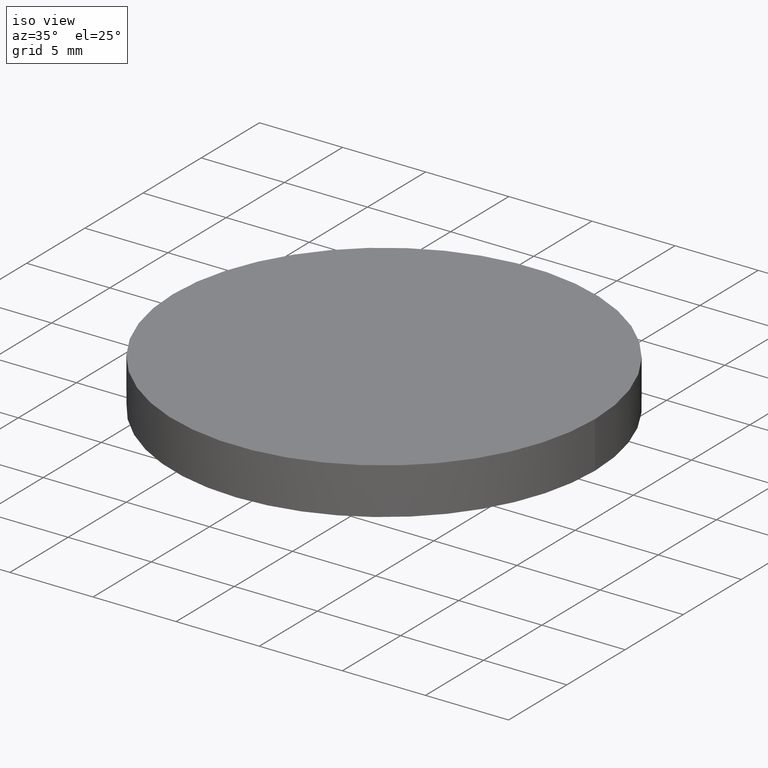
[diagram: clean part render]
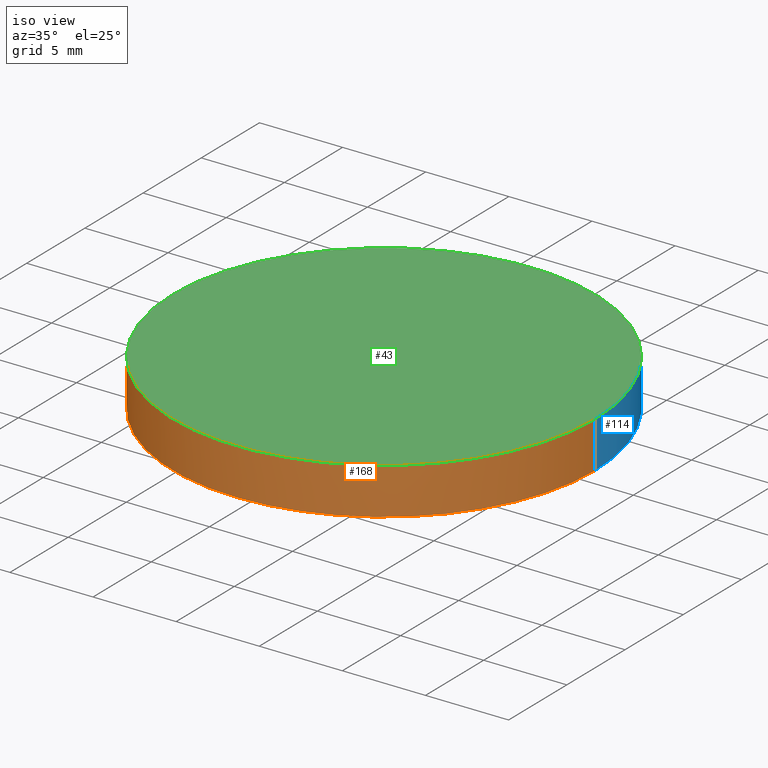
[diagram: same view with three faces highlighted in distinct colors, each labeled with its STEP entity id]
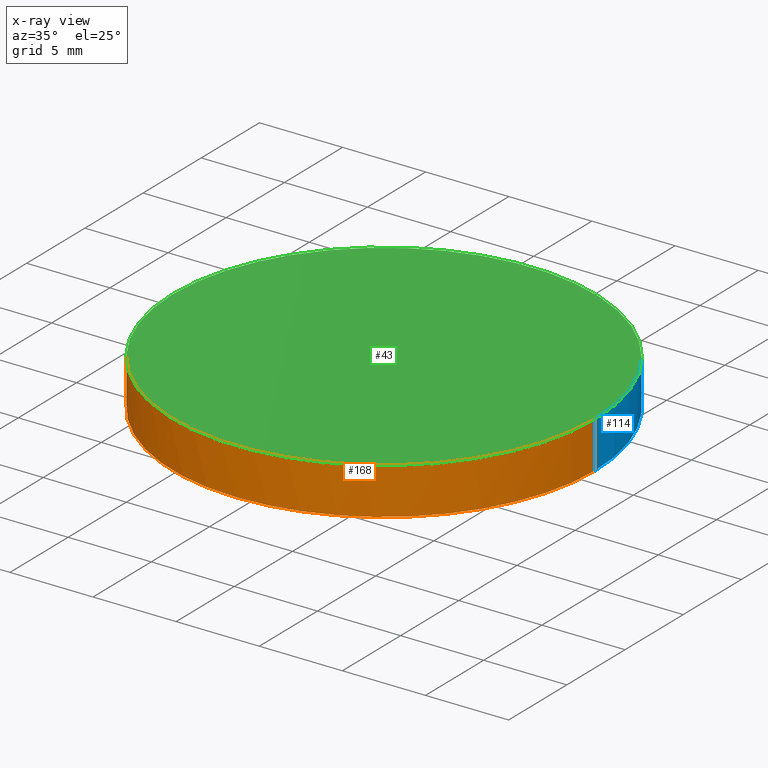
[diagram: x-ray of the same camera — body ghosted, the three highlighted faces saturated]
A machine part, iso view with three faces highlighted in distinct colors.
The next image is the same camera in x-ray (body ghosted, the three faces saturated) — at least one of them is partly hidden behind the body in this view.
Their STEP definitions:

[orange] entity #168 — the highlighted cylindrical surface (partial cylindrical patch) has radius 12.7 mm, axis along (0, 0, 1).
#1 = CARTESIAN_POINT ( 'NONE',  ( 12.69999999999999900, 2.442490654175340100E-015, 0.1943708192956540000 ) ) ;
#10 = CARTESIAN_POINT ( 'NONE',  ( 12.69999999999999900, 2.442490654175340100E-015, 0.1943708192956540000 ) ) ;
#17 = EDGE_CURVE ( 'NONE', #80, #227, #201, .T. ) ;
#18 = EDGE_LOOP ( 'NONE', ( #213, #72, #182, #161, #126 ) ) ;
#21 = AXIS2_PLACEMENT_3D ( 'NONE', #44, #193, #29 ) ;
#29 = DIRECTION ( 'NONE',  ( 1.000000000000000000, 0.0000000000000000000, 0.0000000000000000000 ) ) ;
#38 = DIRECTION ( 'NONE',  ( 1.000000000000000000, 0.0000000000000000000, 0.0000000000000000000 ) ) ;
#44 = CARTESIAN_POINT ( 'NONE',  ( 4.996003610813200500E-016, 2.442490654175340100E-015, 0.1943708192956540000 ) ) ;
#45 = DIRECTION ( 'NONE',  ( 0.0000000000000000000, 0.0000000000000000000, 1.000000000000000000 ) ) ;
#49 = CIRCLE ( 'NONE', #186, 12.69999999999999900 ) ;
#64 = CARTESIAN_POINT ( 'NONE',  ( -12.69999999999999900, 3.997792089092478900E-015, 3.000000000000000000 ) ) ;
#71 = CARTESIAN_POINT ( 'NONE',  ( -12.69999999999999900, 3.997792089092478900E-015, 0.1943708192956540000 ) ) ;
#72 = ORIENTED_EDGE ( 'NONE', *, *, #121, .F. ) ;
#75 = VERTEX_POINT ( 'NONE', #103 ) ;
#77 = VERTEX_POINT ( 'NONE', #183 ) ;
#80 = VERTEX_POINT ( 'NONE', #232 ) ;
#82 = CARTESIAN_POINT ( 'NONE',  ( 4.996003610813200500E-016, 2.442490654175340100E-015, 0.1943708192956540000 ) ) ;
#85 = VERTEX_POINT ( 'NONE', #1 ) ;
#90 = CIRCLE ( 'NONE', #163, 12.69999999999999900 ) ;
#91 = EDGE_CURVE ( 'NONE', #85, #77, #90, .T. ) ;
#94 = FACE_OUTER_BOUND ( 'NONE', #18, .T. ) ;
#103 = CARTESIAN_POINT ( 'NONE',  ( -12.69999999999999900, 3.997792089092478900E-015, 0.1943708192956540000 ) ) ;
#107 = EDGE_CURVE ( 'NONE', #75, #227, #235, .T. ) ;
#108 = DIRECTION ( 'NONE',  ( 1.000000000000000000, 0.0000000000000000000, 0.0000000000000000000 ) ) ;
#121 = EDGE_CURVE ( 'NONE', #77, #75, #49, .T. ) ;
#126 = ORIENTED_EDGE ( 'NONE', *, *, #17, .T. ) ;
#130 = DIRECTION ( 'NONE',  ( -0.0000000000000000000, -0.0000000000000000000, -1.000000000000000000 ) ) ;
#137 = AXIS2_PLACEMENT_3D ( 'NONE', #233, #178, #108 ) ;
#146 = LINE ( 'NONE', #10, #206 ) ;
#159 = CARTESIAN_POINT ( 'NONE',  ( 4.996003610813200500E-016, 2.442490654175340100E-015, 0.1943708192956540000 ) ) ;
#161 = ORIENTED_EDGE ( 'NONE', *, *, #222, .T. ) ;
#163 = AXIS2_PLACEMENT_3D ( 'NONE', #159, #180, #38 ) ;
#168 = ADVANCED_FACE ( 'NONE', ( #94 ), #231, .T. ) ;
#178 = DIRECTION ( 'NONE',  ( -0.0000000000000000000, -0.0000000000000000000, -1.000000000000000000 ) ) ;
#180 = DIRECTION ( 'NONE',  ( -0.0000000000000000000, -0.0000000000000000000, -1.000000000000000000 ) ) ;
#181 = DIRECTION ( 'NONE',  ( 0.0000000000000000000, 0.0000000000000000000, 1.000000000000000000 ) ) ;
#182 = ORIENTED_EDGE ( 'NONE', *, *, #91, .F. ) ;
#183 = CARTESIAN_POINT ( 'NONE',  ( 1.608035159061269200E-013, -12.69999999999961700, 0.1943708192956423200 ) ) ;
#186 = AXIS2_PLACEMENT_3D ( 'NONE', #82, #130, #214 ) ;
#193 = DIRECTION ( 'NONE',  ( 0.0000000000000000000, 0.0000000000000000000, 1.000000000000000000 ) ) ;
#201 = CIRCLE ( 'NONE', #137, 12.69999999999999900 ) ;
#206 = VECTOR ( 'NONE', #45, 1000.000000000000000 ) ;
#213 = ORIENTED_EDGE ( 'NONE', *, *, #107, .F. ) ;
#214 = DIRECTION ( 'NONE',  ( 1.000000000000000000, 0.0000000000000000000, 0.0000000000000000000 ) ) ;
#222 = EDGE_CURVE ( 'NONE', #85, #80, #146, .T. ) ;
#223 = VECTOR ( 'NONE', #181, 1000.000000000000000 ) ;
#227 = VERTEX_POINT ( 'NONE', #64 ) ;
#231 = CYLINDRICAL_SURFACE ( 'NONE', #21, 12.69999999999999900 ) ;
#232 = CARTESIAN_POINT ( 'NONE',  ( 12.69999999999999900, 2.442490654175340100E-015, 3.000000000000000000 ) ) ;
#233 = CARTESIAN_POINT ( 'NONE',  ( 4.996003610813200500E-016, 2.442490654175340100E-015, 3.000000000000000000 ) ) ;
#235 = LINE ( 'NONE', #71, #223 ) ;

[blue] entity #114 — the highlighted cylindrical surface (partial cylindrical patch) has radius 12.7 mm, axis along (0, 0, 1).
#1 = CARTESIAN_POINT ( 'NONE',  ( 12.69999999999999900, 2.442490654175340100E-015, 0.1943708192956540000 ) ) ;
#3 = EDGE_CURVE ( 'NONE', #42, #85, #97, .T. ) ;
#10 = CARTESIAN_POINT ( 'NONE',  ( 12.69999999999999900, 2.442490654175340100E-015, 0.1943708192956540000 ) ) ;
#23 = EDGE_LOOP ( 'NONE', ( #207, #46, #39, #167, #225 ) ) ;
#39 = ORIENTED_EDGE ( 'NONE', *, *, #112, .T. ) ;
#42 = VERTEX_POINT ( 'NONE', #127 ) ;
#45 = DIRECTION ( 'NONE',  ( 0.0000000000000000000, 0.0000000000000000000, 1.000000000000000000 ) ) ;
#46 = ORIENTED_EDGE ( 'NONE', *, *, #107, .T. ) ;
#61 = AXIS2_PLACEMENT_3D ( 'NONE', #81, #170, #154 ) ;
#64 = CARTESIAN_POINT ( 'NONE',  ( -12.69999999999999900, 3.997792089092478900E-015, 3.000000000000000000 ) ) ;
#71 = CARTESIAN_POINT ( 'NONE',  ( -12.69999999999999900, 3.997792089092478900E-015, 0.1943708192956540000 ) ) ;
#75 = VERTEX_POINT ( 'NONE', #103 ) ;
#80 = VERTEX_POINT ( 'NONE', #232 ) ;
#81 = CARTESIAN_POINT ( 'NONE',  ( 4.996003610813200500E-016, 2.442490654175340100E-015, 0.1943708192956540000 ) ) ;
#85 = VERTEX_POINT ( 'NONE', #1 ) ;
#87 = CYLINDRICAL_SURFACE ( 'NONE', #144, 12.69999999999999900 ) ;
#88 = AXIS2_PLACEMENT_3D ( 'NONE', #116, #169, #151 ) ;
#89 = DIRECTION ( 'NONE',  ( 0.0000000000000000000, 0.0000000000000000000, 1.000000000000000000 ) ) ;
#97 = CIRCLE ( 'NONE', #157, 12.69999999999999900 ) ;
#103 = CARTESIAN_POINT ( 'NONE',  ( -12.69999999999999900, 3.997792089092478900E-015, 0.1943708192956540000 ) ) ;
#107 = EDGE_CURVE ( 'NONE', #75, #227, #235, .T. ) ;
#112 = EDGE_CURVE ( 'NONE', #227, #80, #147, .T. ) ;
#114 = ADVANCED_FACE ( 'NONE', ( #141 ), #87, .T. ) ;
#116 = CARTESIAN_POINT ( 'NONE',  ( 4.996003610813200500E-016, 2.442490654175340100E-015, 3.000000000000000000 ) ) ;
#117 = DIRECTION ( 'NONE',  ( 1.000000000000000000, 0.0000000000000000000, 0.0000000000000000000 ) ) ;
#127 = CARTESIAN_POINT ( 'NONE',  ( 1.536894163389856000E-013, 12.69999999999961700, 0.1943708192956423200 ) ) ;
#136 = CIRCLE ( 'NONE', #61, 12.69999999999999900 ) ;
#141 = FACE_OUTER_BOUND ( 'NONE', #23, .T. ) ;
#142 = DIRECTION ( 'NONE',  ( 1.000000000000000000, 1.776356839400250500E-015, 0.0000000000000000000 ) ) ;
#144 = AXIS2_PLACEMENT_3D ( 'NONE', #188, #89, #117 ) ;
#146 = LINE ( 'NONE', #10, #206 ) ;
#147 = CIRCLE ( 'NONE', #88, 12.69999999999999900 ) ;
#151 = DIRECTION ( 'NONE',  ( 1.000000000000000000, 0.0000000000000000000, 0.0000000000000000000 ) ) ;
#154 = DIRECTION ( 'NONE',  ( 1.000000000000000000, -8.881784197001252300E-016, 0.0000000000000000000 ) ) ;
#157 = AXIS2_PLACEMENT_3D ( 'NONE', #162, #164, #142 ) ;
#162 = CARTESIAN_POINT ( 'NONE',  ( 4.996003610813200500E-016, 2.442490654175340100E-015, 0.1943708192956540000 ) ) ;
#164 = DIRECTION ( 'NONE',  ( -0.0000000000000000000, -0.0000000000000000000, -1.000000000000000000 ) ) ;
#167 = ORIENTED_EDGE ( 'NONE', *, *, #222, .F. ) ;
#169 = DIRECTION ( 'NONE',  ( -0.0000000000000000000, -0.0000000000000000000, -1.000000000000000000 ) ) ;
#170 = DIRECTION ( 'NONE',  ( -0.0000000000000000000, -0.0000000000000000000, -1.000000000000000000 ) ) ;
#181 = DIRECTION ( 'NONE',  ( 0.0000000000000000000, 0.0000000000000000000, 1.000000000000000000 ) ) ;
#184 = EDGE_CURVE ( 'NONE', #75, #42, #136, .T. ) ;
#188 = CARTESIAN_POINT ( 'NONE',  ( 4.996003610813200500E-016, 2.442490654175340100E-015, 0.1943708192956540000 ) ) ;
#206 = VECTOR ( 'NONE', #45, 1000.000000000000000 ) ;
#207 = ORIENTED_EDGE ( 'NONE', *, *, #184, .F. ) ;
#222 = EDGE_CURVE ( 'NONE', #85, #80, #146, .T. ) ;
#223 = VECTOR ( 'NONE', #181, 1000.000000000000000 ) ;
#225 = ORIENTED_EDGE ( 'NONE', *, *, #3, .F. ) ;
#227 = VERTEX_POINT ( 'NONE', #64 ) ;
#232 = CARTESIAN_POINT ( 'NONE',  ( 12.69999999999999900, 2.442490654175340100E-015, 3.000000000000000000 ) ) ;
#235 = LINE ( 'NONE', #71, #223 ) ;

[green] entity #43 — the highlighted planar face has unit normal (0, 0, 1).
#7 = ORIENTED_EDGE ( 'NONE', *, *, #112, .F. ) ;
#17 = EDGE_CURVE ( 'NONE', #80, #227, #201, .T. ) ;
#19 = DIRECTION ( 'NONE',  ( 0.0000000000000000000, 0.0000000000000000000, 1.000000000000000000 ) ) ;
#30 = EDGE_LOOP ( 'NONE', ( #57, #7 ) ) ;
#43 = ADVANCED_FACE ( 'NONE', ( #63 ), #84, .T. ) ;
#51 = DIRECTION ( 'NONE',  ( 1.000000000000000000, 0.0000000000000000000, -0.0000000000000000000 ) ) ;
#57 = ORIENTED_EDGE ( 'NONE', *, *, #17, .F. ) ;
#63 = FACE_OUTER_BOUND ( 'NONE', #30, .T. ) ;
#64 = CARTESIAN_POINT ( 'NONE',  ( -12.69999999999999900, 3.997792089092478900E-015, 3.000000000000000000 ) ) ;
#80 = VERTEX_POINT ( 'NONE', #232 ) ;
#84 = PLANE ( 'NONE',  #129 ) ;
#88 = AXIS2_PLACEMENT_3D ( 'NONE', #116, #169, #151 ) ;
#108 = DIRECTION ( 'NONE',  ( 1.000000000000000000, 0.0000000000000000000, 0.0000000000000000000 ) ) ;
#112 = EDGE_CURVE ( 'NONE', #227, #80, #147, .T. ) ;
#116 = CARTESIAN_POINT ( 'NONE',  ( 4.996003610813200500E-016, 2.442490654175340100E-015, 3.000000000000000000 ) ) ;
#129 = AXIS2_PLACEMENT_3D ( 'NONE', #140, #19, #51 ) ;
#137 = AXIS2_PLACEMENT_3D ( 'NONE', #233, #178, #108 ) ;
#140 = CARTESIAN_POINT ( 'NONE',  ( 0.0000000000000000000, 26.11199999999999800, 3.000000000000000000 ) ) ;
#147 = CIRCLE ( 'NONE', #88, 12.69999999999999900 ) ;
#151 = DIRECTION ( 'NONE',  ( 1.000000000000000000, 0.0000000000000000000, 0.0000000000000000000 ) ) ;
#169 = DIRECTION ( 'NONE',  ( -0.0000000000000000000, -0.0000000000000000000, -1.000000000000000000 ) ) ;
#178 = DIRECTION ( 'NONE',  ( -0.0000000000000000000, -0.0000000000000000000, -1.000000000000000000 ) ) ;
#201 = CIRCLE ( 'NONE', #137, 12.69999999999999900 ) ;
#227 = VERTEX_POINT ( 'NONE', #64 ) ;
#232 = CARTESIAN_POINT ( 'NONE',  ( 12.69999999999999900, 2.442490654175340100E-015, 3.000000000000000000 ) ) ;
#233 = CARTESIAN_POINT ( 'NONE',  ( 4.996003610813200500E-016, 2.442490654175340100E-015, 3.000000000000000000 ) ) ;